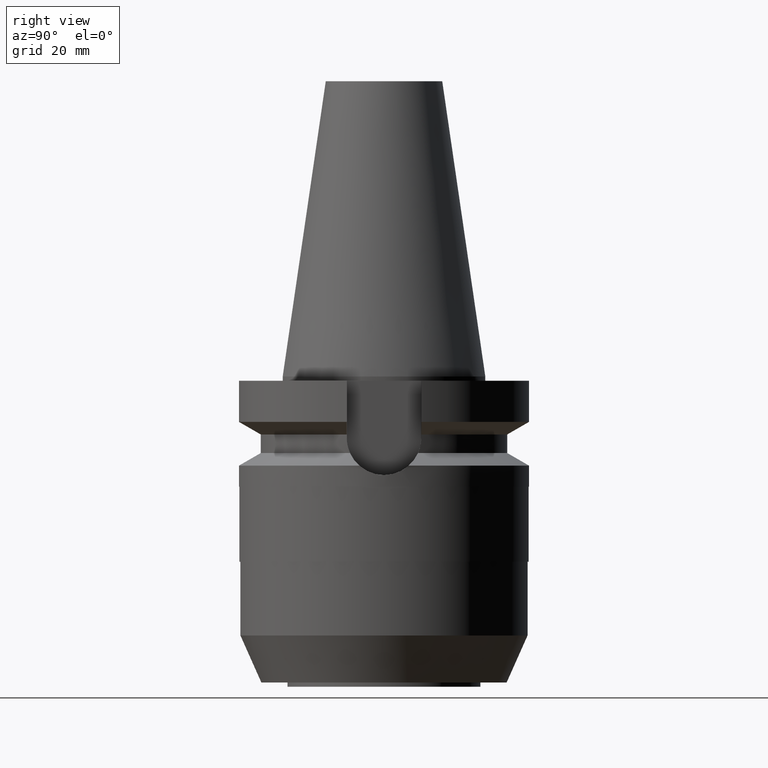
[diagram: clean part render]
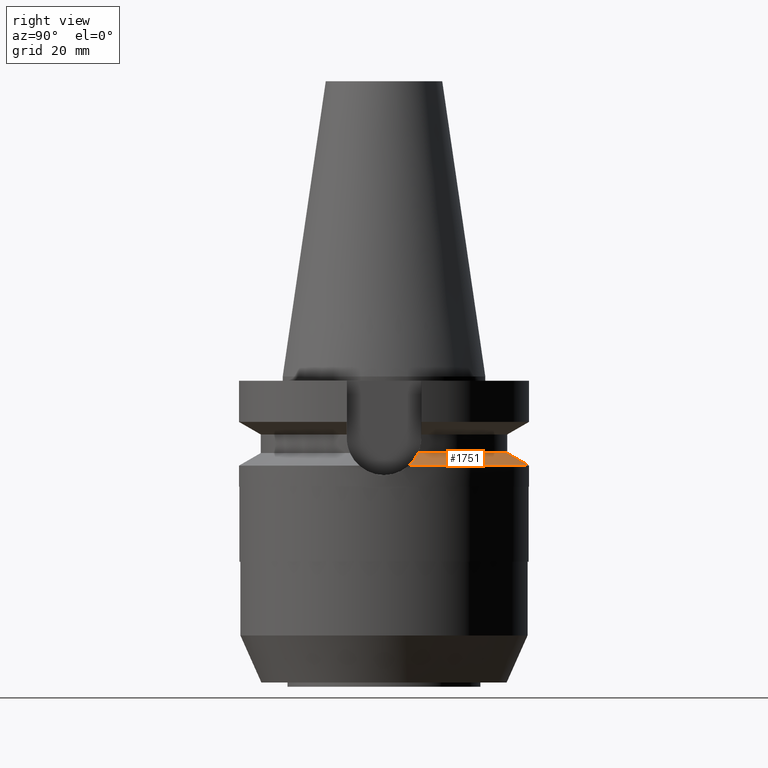
[diagram: same view with one face highlighted and labeled with its STEP entity id]
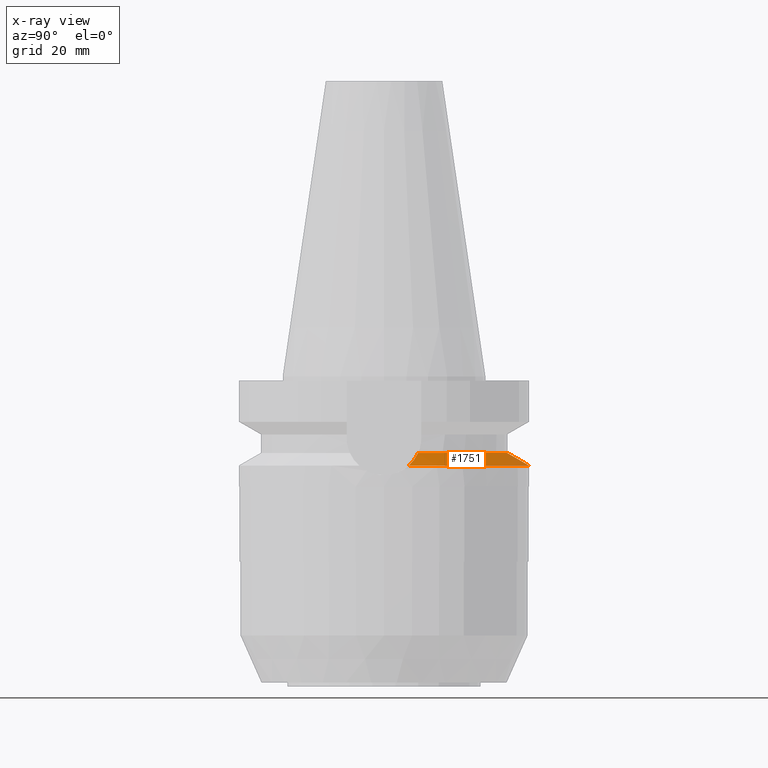
[diagram: x-ray of the same camera — body ghosted, the highlighted face saturated]
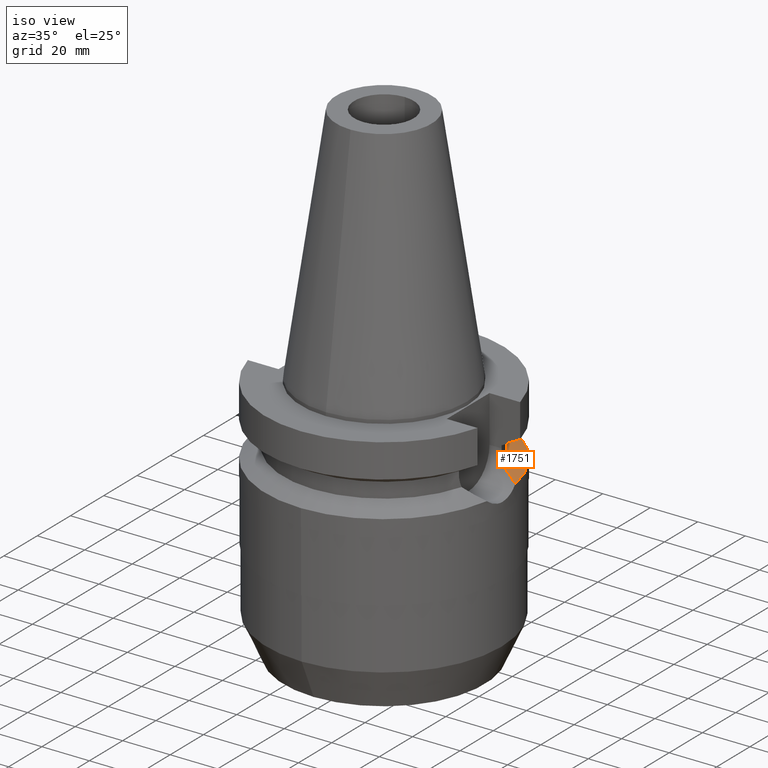
[diagram: same view with one face highlighted and labeled with its STEP entity id]
A machine part, right view. The second image highlights one B-rep face of the part: STEP entity #1751.
The next image is the same camera in x-ray: the body ghosted, the highlighted face saturated — about 0% of this face is hidden behind the body in this view.
A second angle (iso view) of the same face is appended — the face is thin or edge-on in the first view.
In plain terms, the highlighted conical surface has half-angle 60 deg.
Its self-contained STEP definition (entity closure, byte-faithful):
#463=CARTESIAN_POINT('',(4.926250064874E1,8.556052234130E0,-3.073730776427E1));
#577=CARTESIAN_POINT('',(-4.085052569294E1,1.172538061688E1,-2.640718074535E1));
#578=CARTESIAN_POINT('',(-4.174566384464E1,1.151750408158E1,-2.687081926488E1));
#579=CARTESIAN_POINT('',(-4.343653247987E1,1.105966395092E1,-2.774441375920E1));
#580=CARTESIAN_POINT('',(-4.566160658478E1,1.028645043907E1,-2.889002671338E1));
#581=CARTESIAN_POINT('',(-4.760762985344E1,9.449101163112E0,-2.988937082057E1));
#582=CARTESIAN_POINT('',(-4.873924631938E1,8.856330076466E0,-3.046932920690E1));
#583=CARTESIAN_POINT('',(-4.926250064874E1,8.556052234130E0,-3.073730776427E1));
#588=CARTESIAN_POINT('',(0.E0,0.E0,-3.073730776427E1));
#589=DIRECTION('',(0.E0,0.E0,-1.E0));
#590=DIRECTION('',(-9.852500129747E-1,1.711210446826E-1,0.E0));
#591=AXIS2_PLACEMENT_3D('',#588,#589,#590);
#596=CARTESIAN_POINT('',(0.E0,0.E0,-3.073730776427E1));
#597=DIRECTION('',(0.E0,0.E0,-1.E0));
#598=DIRECTION('',(0.E0,1.E0,0.E0));
#599=AXIS2_PLACEMENT_3D('',#596,#597,#598);
#604=CARTESIAN_POINT('',(4.926250064874E1,8.556052234130E0,-3.073730776427E1));
#605=CARTESIAN_POINT('',(4.845233128634E1,9.020980844215E0,-3.032238904352E1));
#606=CARTESIAN_POINT('',(4.673926828333E1,9.869822708144E0,-2.944406761271E1));
#607=CARTESIAN_POINT('',(4.392742127856E1,1.092169886189E1,-2.799784378705E1));
#608=CARTESIAN_POINT('',(4.189973462136E1,1.148172446567E1,-2.695062051867E1));
#609=CARTESIAN_POINT('',(4.085052569294E1,1.172538061688E1,-2.640718074535E1));
#614=CARTESIAN_POINT('',(0.E0,0.E0,-2.640718074535E1));
#615=DIRECTION('',(0.E0,0.E0,1.E0));
#616=DIRECTION('',(9.611888398338E-1,2.758913086325E-1,0.E0));
#617=AXIS2_PLACEMENT_3D('',#614,#615,#616);
#622=CARTESIAN_POINT('',(0.E0,0.E0,-2.640718074535E1));
#623=DIRECTION('',(0.E0,0.E0,1.E0));
#624=DIRECTION('',(0.E0,1.E0,0.E0));
#625=AXIS2_PLACEMENT_3D('',#622,#623,#624);
#640=CARTESIAN_POINT('',(4.085052569294E1,1.172538061688E1,-2.640718074535E1));
#1133=VERTEX_POINT('',#463);
#1135=CARTESIAN_POINT('',(0.E0,5.E1,-3.073730776427E1));
#1136=VERTEX_POINT('',#1135);
#1149=VERTEX_POINT('',#640);
#1154=VERTEX_POINT('',#577);
#1155=VERTEX_POINT('',#583);
#1156=CARTESIAN_POINT('',(0.E0,4.25E1,-2.640718074535E1));
#1157=VERTEX_POINT('',#1156);
#1736=CARTESIAN_POINT('',(0.E0,0.E0,-2.857224425481E1));
#1737=DIRECTION('',(0.E0,0.E0,-1.E0));
#1738=DIRECTION('',(0.E0,-1.E0,0.E0));
#1739=AXIS2_PLACEMENT_3D('',#1736,#1737,#1738);
#1740=CONICAL_SURFACE('',#1739,4.625E1,6.E1);
#1741=ORIENTED_EDGE('',*,*,#1704,.T.);
#1742=ORIENTED_EDGE('',*,*,#1731,.T.);
#1743=ORIENTED_EDGE('',*,*,#1640,.T.);
#1744=ORIENTED_EDGE('',*,*,#1673,.T.);
#1746=ORIENTED_EDGE('',*,*,#1745,.T.);
#1748=ORIENTED_EDGE('',*,*,#1747,.T.);
#1749=EDGE_LOOP('',(#1741,#1742,#1743,#1744,#1746,#1748));
#1750=FACE_OUTER_BOUND('',#1749,.F.);
#584=B_SPLINE_CURVE_WITH_KNOTS('',3,(#577,#578,#579,#580,#581,#582,#583),
.UNSPECIFIED.,.F.,.F.,(4,1,1,1,4),(0.E0,2.5E-1,5.E-1,7.5E-1,1.E0),
.UNSPECIFIED.);
#592=CIRCLE('',#591,5.E1);
#600=CIRCLE('',#599,5.E1);
#610=B_SPLINE_CURVE_WITH_KNOTS('',3,(#604,#605,#606,#607,#608,#609),
.UNSPECIFIED.,.F.,.F.,(4,1,1,4),(0.E0,3.333333333333E-1,6.666666666667E-1,1.E0),
.UNSPECIFIED.);
#618=CIRCLE('',#617,4.25E1);
#626=CIRCLE('',#625,4.25E1);
#1640=EDGE_CURVE('',#1136,#1133,#600,.T.);
#1673=EDGE_CURVE('',#1133,#1149,#610,.T.);
#1704=EDGE_CURVE('',#1154,#1155,#584,.T.);
#1731=EDGE_CURVE('',#1155,#1136,#592,.T.);
#1745=EDGE_CURVE('',#1149,#1157,#618,.T.);
#1747=EDGE_CURVE('',#1157,#1154,#626,.T.);
#1751=ADVANCED_FACE('',(#1750),#1740,.T.);